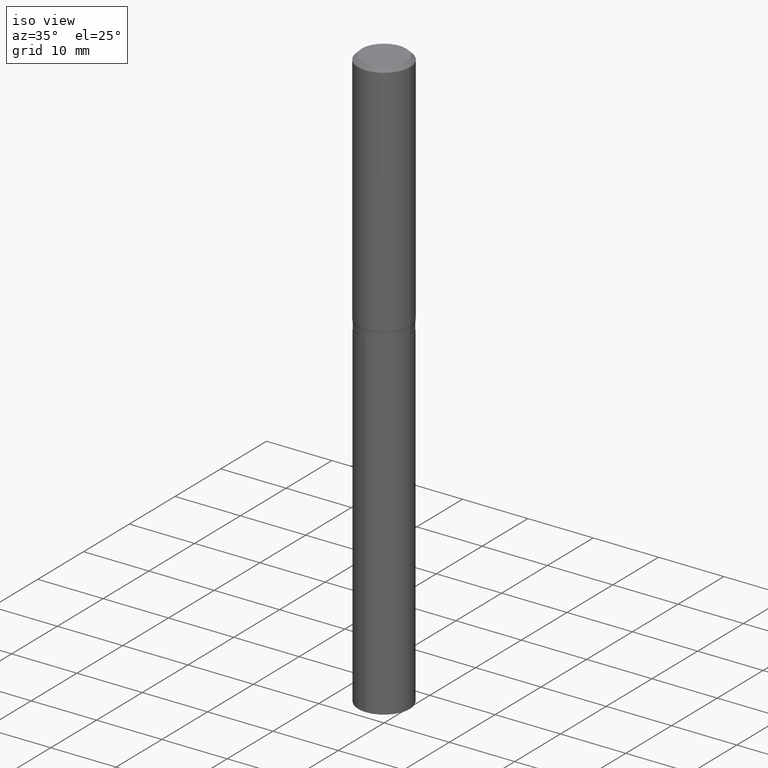
[diagram: clean part render]
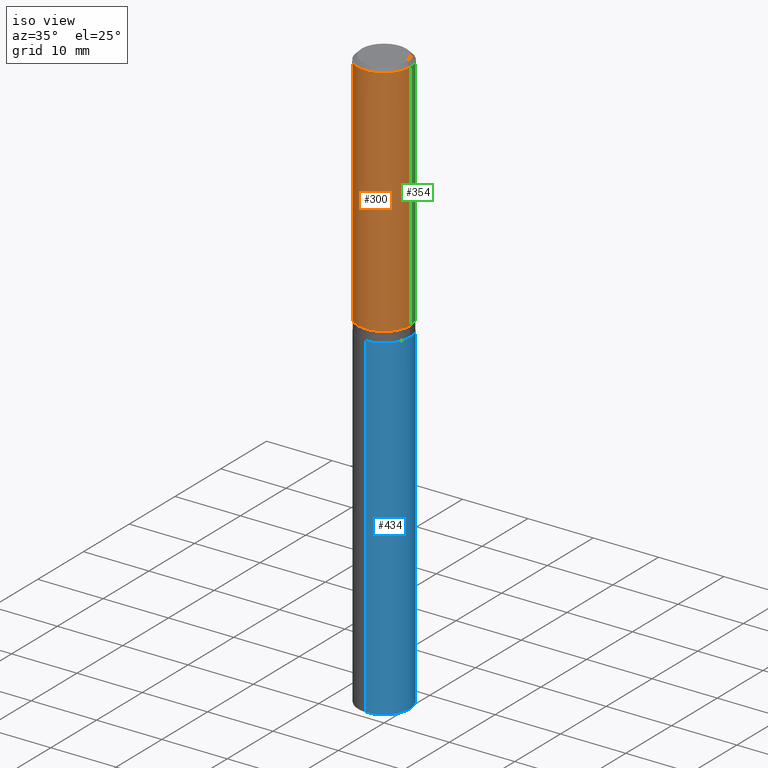
[diagram: same view with three faces highlighted in distinct colors, each labeled with its STEP entity id]
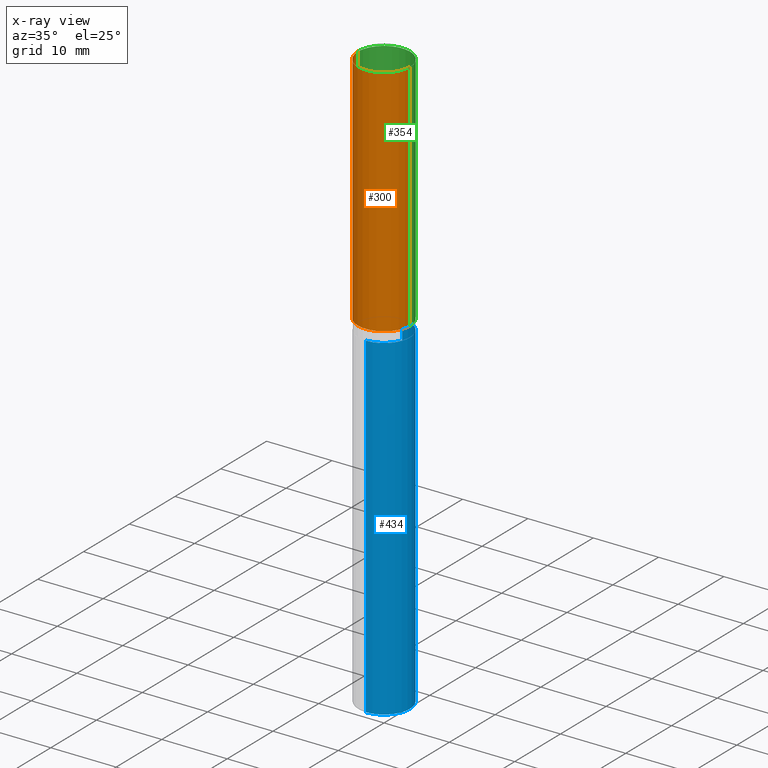
[diagram: x-ray of the same camera — body ghosted, the three highlighted faces saturated]
A machine part, iso view with three faces highlighted in distinct colors.
The next image is the same camera in x-ray (body ghosted, the three faces saturated) — at least one of them is partly hidden behind the body in this view.
Their STEP definitions:

[orange] entity #300 — the highlighted cylindrical surface (edge-blend (fillet) strip) has radius 4.0005 mm, axis along (-0, 0, 1).
#25 = FACE_OUTER_BOUND ( 'NONE', #258, .T. ) ;
#45 = ORIENTED_EDGE ( 'NONE', *, *, #226, .T. ) ;
#69 = CIRCLE ( 'NONE', #176, 0.1575000000000000011 ) ;
#70 = CARTESIAN_POINT ( 'NONE',  ( -0.1575000000000000844, -3.879823846748023569E-15, -1.431750071225214915 ) ) ;
#105 = VERTEX_POINT ( 'NONE', #138 ) ;
#114 = ORIENTED_EDGE ( 'NONE', *, *, #116, .F. ) ;
#116 = EDGE_CURVE ( 'NONE', #445, #378, #219, .T. ) ;
#122 = VECTOR ( 'NONE', #277, 39.37007874015748143 ) ;
#138 = CARTESIAN_POINT ( 'NONE',  ( 0.1575000000000000011, -1.182302868365756679E-15, -0.02362500000000014588 ) ) ;
#143 = DIRECTION ( 'NONE',  ( -2.445468806185136597E-29, 3.491481338843145583E-15, 1.000000000000000000 ) ) ;
#149 = LINE ( 'NONE', #400, #122 ) ;
#157 = EDGE_CURVE ( 'NONE', #378, #105, #69, .T. ) ;
#163 = CARTESIAN_POINT ( 'NONE',  ( 3.501300137434611015E-29, -4.998928655570182750E-15, -1.431750071225214915 ) ) ;
#167 = VERTEX_POINT ( 'NONE', #380 ) ;
#176 = AXIS2_PLACEMENT_3D ( 'NONE', #305, #231, #190 ) ;
#190 = DIRECTION ( 'NONE',  ( 1.000000000000000000, -6.982962677686265922E-15, 0.000000000000000000 ) ) ;
#219 = LINE ( 'NONE', #260, #394 ) ;
#226 = EDGE_CURVE ( 'NONE', #167, #105, #149, .T. ) ;
#231 = DIRECTION ( 'NONE',  ( -2.445468806185136597E-29, 3.491481338843145583E-15, 1.000000000000000000 ) ) ;
#258 = EDGE_LOOP ( 'NONE', ( #114, #297, #45, #366 ) ) ;
#259 = EDGE_CURVE ( 'NONE', #445, #167, #324, .T. ) ;
#260 = CARTESIAN_POINT ( 'NONE',  ( -0.1575000000000000566, 1.119104808822158195E-15, -7.747322767151479787E-30 ) ) ;
#277 = DIRECTION ( 'NONE',  ( -2.445468806185136877E-29, 3.491481338843145188E-15, 1.000000000000000000 ) ) ;
#297 = ORIENTED_EDGE ( 'NONE', *, *, #259, .T. ) ;
#300 = ADVANCED_FACE ( 'NONE', ( #25 ), #396, .T. ) ;
#305 = CARTESIAN_POINT ( 'NONE',  ( 5.777420054612421104E-31, -8.248624663016984002E-17, -0.02362500000000014588 ) ) ;
#311 = DIRECTION ( 'NONE',  ( -2.445468806185136597E-29, 3.491481338843145583E-15, 1.000000000000000000 ) ) ;
#315 = CARTESIAN_POINT ( 'NONE',  ( -0.1575000000000000011, -1.421602642278017878E-15, -0.02362500000000014588 ) ) ;
#324 = CIRCLE ( 'NONE', #382, 0.1575000000000001399 ) ;
#366 = ORIENTED_EDGE ( 'NONE', *, *, #157, .F. ) ;
#378 = VERTEX_POINT ( 'NONE', #315 ) ;
#380 = CARTESIAN_POINT ( 'NONE',  ( 0.1575000000000000844, -6.098745277305771019E-15, -1.431750071225214915 ) ) ;
#382 = AXIS2_PLACEMENT_3D ( 'NONE', #163, #311, #466 ) ;
#383 = DIRECTION ( 'NONE',  ( -2.445468806185136877E-29, 3.491481338843145188E-15, 1.000000000000000000 ) ) ;
#384 = DIRECTION ( 'NONE',  ( 1.000000000000000000, -6.982962677686267499E-15, 4.876176775795936353E-29 ) ) ;
#394 = VECTOR ( 'NONE', #383, 39.37007874015748143 ) ;
#396 = CYLINDRICAL_SURFACE ( 'NONE', #456, 0.1575000000000000566 ) ;
#400 = CARTESIAN_POINT ( 'NONE',  ( 0.1575000000000000566, -1.099816621735587480E-15, 7.679978421878602237E-30 ) ) ;
#445 = VERTEX_POINT ( 'NONE', #70 ) ;
#456 = AXIS2_PLACEMENT_3D ( 'NONE', #486, #143, #384 ) ;
#466 = DIRECTION ( 'NONE',  ( 1.000000000000000000, -6.982962677686268288E-15, 0.000000000000000000 ) ) ;
#486 = CARTESIAN_POINT ( 'NONE',  ( 0.000000000000000000, 0.000000000000000000, 0.000000000000000000 ) ) ;

[blue] entity #434 — the highlighted cylindrical surface (edge-blend (fillet) strip) has radius 3.9497 mm, axis along (-0, 0, 1).
#4 = AXIS2_PLACEMENT_3D ( 'NONE', #372, #35, #148 ) ;
#8 = VERTEX_POINT ( 'NONE', #433 ) ;
#23 = CYLINDRICAL_SURFACE ( 'NONE', #4, 0.1554999999999999993 ) ;
#28 = ORIENTED_EDGE ( 'NONE', *, *, #283, .T. ) ;
#35 = DIRECTION ( 'NONE',  ( -2.445445601509706497E-29, 3.491514569259089389E-15, 1.000000000000000000 ) ) ;
#59 = CARTESIAN_POINT ( 'NONE',  ( -1.085850696380128480E-15, -0.1555000000000123228, -3.520173921882633117 ) ) ;
#80 = CIRCLE ( 'NONE', #127, 0.1554999999999999993 ) ;
#81 = ORIENTED_EDGE ( 'NONE', *, *, #291, .F. ) ;
#86 = EDGE_CURVE ( 'NONE', #194, #184, #294, .T. ) ;
#101 = CARTESIAN_POINT ( 'NONE',  ( -1.085850696380177586E-15, -0.1555000000000052174, -1.496399999999999730 ) ) ;
#125 = VECTOR ( 'NONE', #276, 39.37007874015748143 ) ;
#127 = AXIS2_PLACEMENT_3D ( 'NONE', #204, #363, #361 ) ;
#137 = EDGE_LOOP ( 'NONE', ( #274, #28, #81, #387 ) ) ;
#148 = DIRECTION ( 'NONE',  ( -6.982962677686265133E-15, -1.000000000000000000, 3.513630860018345064E-15 ) ) ;
#161 = VECTOR ( 'NONE', #467, 39.37007874015748143 ) ;
#184 = VERTEX_POINT ( 'NONE', #197 ) ;
#186 = DIRECTION ( 'NONE',  ( -6.982962677686265133E-15, -1.000000000000000000, 3.513630860018345064E-15 ) ) ;
#192 = CARTESIAN_POINT ( 'NONE',  ( 1.104893954106992072E-15, 0.1554999999999947535, -1.496400000000000841 ) ) ;
#194 = VERTEX_POINT ( 'NONE', #59 ) ;
#197 = CARTESIAN_POINT ( 'NONE',  ( -1.085850696380177586E-15, -0.1555000000000052174, -1.496399999999999730 ) ) ;
#204 = CARTESIAN_POINT ( 'NONE',  ( 3.659399521575438742E-29, -5.224652675444883351E-15, -1.496400000000000174 ) ) ;
#212 = CARTESIAN_POINT ( 'NONE',  ( 1.104893954107042165E-15, 0.1554999999999947535, -1.496400000000000841 ) ) ;
#265 = CIRCLE ( 'NONE', #431, 0.1554999999999999993 ) ;
#274 = ORIENTED_EDGE ( 'NONE', *, *, #469, .T. ) ;
#276 = DIRECTION ( 'NONE',  ( -2.445445601509706497E-29, 3.491514569259089389E-15, 1.000000000000000000 ) ) ;
#283 = EDGE_CURVE ( 'NONE', #8, #452, #436, .T. ) ;
#291 = EDGE_CURVE ( 'NONE', #184, #452, #80, .T. ) ;
#294 = LINE ( 'NONE', #101, #125 ) ;
#328 = CARTESIAN_POINT ( 'NONE',  ( 8.608428557293372452E-29, -1.229068880858470422E-14, -3.520173921882633561 ) ) ;
#359 = FACE_OUTER_BOUND ( 'NONE', #137, .T. ) ;
#361 = DIRECTION ( 'NONE',  ( -6.982962677686265133E-15, -1.000000000000000000, 3.513630860018345064E-15 ) ) ;
#363 = DIRECTION ( 'NONE',  ( -2.445445601509706497E-29, 3.491514569259089389E-15, 1.000000000000000000 ) ) ;
#372 = CARTESIAN_POINT ( 'NONE',  ( 3.659399521575438742E-29, -5.224652675444883351E-15, -1.496400000000000174 ) ) ;
#387 = ORIENTED_EDGE ( 'NONE', *, *, #86, .F. ) ;
#431 = AXIS2_PLACEMENT_3D ( 'NONE', #328, #483, #186 ) ;
#433 = CARTESIAN_POINT ( 'NONE',  ( 1.104893954107041770E-15, 0.1554999999999877591, -3.520173921882634005 ) ) ;
#434 = ADVANCED_FACE ( 'NONE', ( #359 ), #23, .T. ) ;
#436 = LINE ( 'NONE', #192, #161 ) ;
#452 = VERTEX_POINT ( 'NONE', #212 ) ;
#467 = DIRECTION ( 'NONE',  ( -2.445445601509706497E-29, 3.491514569259089389E-15, 1.000000000000000000 ) ) ;
#469 = EDGE_CURVE ( 'NONE', #194, #8, #265, .T. ) ;
#483 = DIRECTION ( 'NONE',  ( -2.445445601509706497E-29, 3.491514569259089389E-15, 1.000000000000000000 ) ) ;

[green] entity #354 — the highlighted cylindrical surface (edge-blend (fillet) strip) has radius 4.0005 mm, axis along (-0, 0, 1).
#12 = DIRECTION ( 'NONE',  ( -2.445468806185136597E-29, 3.491481338843145583E-15, 1.000000000000000000 ) ) ;
#27 = DIRECTION ( 'NONE',  ( 1.000000000000000000, -6.982962677686268288E-15, 0.000000000000000000 ) ) ;
#29 = EDGE_CURVE ( 'NONE', #167, #445, #365, .T. ) ;
#70 = CARTESIAN_POINT ( 'NONE',  ( -0.1575000000000000844, -3.879823846748023569E-15, -1.431750071225214915 ) ) ;
#85 = CARTESIAN_POINT ( 'NONE',  ( 0.000000000000000000, 0.000000000000000000, 0.000000000000000000 ) ) ;
#90 = AXIS2_PLACEMENT_3D ( 'NONE', #85, #351, #132 ) ;
#105 = VERTEX_POINT ( 'NONE', #138 ) ;
#116 = EDGE_CURVE ( 'NONE', #445, #378, #219, .T. ) ;
#122 = VECTOR ( 'NONE', #277, 39.37007874015748143 ) ;
#132 = DIRECTION ( 'NONE',  ( 1.000000000000000000, -6.982962677686267499E-15, 4.876176775795936353E-29 ) ) ;
#138 = CARTESIAN_POINT ( 'NONE',  ( 0.1575000000000000011, -1.182302868365756679E-15, -0.02362500000000014588 ) ) ;
#140 = DIRECTION ( 'NONE',  ( -2.445468806185136597E-29, 3.491481338843145583E-15, 1.000000000000000000 ) ) ;
#149 = LINE ( 'NONE', #400, #122 ) ;
#160 = DIRECTION ( 'NONE',  ( 1.000000000000000000, -6.982962677686265922E-15, 0.000000000000000000 ) ) ;
#167 = VERTEX_POINT ( 'NONE', #380 ) ;
#182 = EDGE_LOOP ( 'NONE', ( #282, #327, #370, #214 ) ) ;
#210 = CIRCLE ( 'NONE', #465, 0.1575000000000000011 ) ;
#214 = ORIENTED_EDGE ( 'NONE', *, *, #226, .F. ) ;
#219 = LINE ( 'NONE', #260, #394 ) ;
#226 = EDGE_CURVE ( 'NONE', #167, #105, #149, .T. ) ;
#239 = EDGE_CURVE ( 'NONE', #105, #378, #210, .T. ) ;
#260 = CARTESIAN_POINT ( 'NONE',  ( -0.1575000000000000566, 1.119104808822158195E-15, -7.747322767151479787E-30 ) ) ;
#277 = DIRECTION ( 'NONE',  ( -2.445468806185136877E-29, 3.491481338843145188E-15, 1.000000000000000000 ) ) ;
#282 = ORIENTED_EDGE ( 'NONE', *, *, #29, .T. ) ;
#306 = CYLINDRICAL_SURFACE ( 'NONE', #90, 0.1575000000000000566 ) ;
#315 = CARTESIAN_POINT ( 'NONE',  ( -0.1575000000000000011, -1.421602642278017878E-15, -0.02362500000000014588 ) ) ;
#319 = CARTESIAN_POINT ( 'NONE',  ( 3.501300137434611015E-29, -4.998928655570182750E-15, -1.431750071225214915 ) ) ;
#327 = ORIENTED_EDGE ( 'NONE', *, *, #116, .T. ) ;
#349 = FACE_OUTER_BOUND ( 'NONE', #182, .T. ) ;
#351 = DIRECTION ( 'NONE',  ( -2.445468806185136597E-29, 3.491481338843145583E-15, 1.000000000000000000 ) ) ;
#354 = ADVANCED_FACE ( 'NONE', ( #349 ), #306, .T. ) ;
#365 = CIRCLE ( 'NONE', #435, 0.1575000000000001399 ) ;
#370 = ORIENTED_EDGE ( 'NONE', *, *, #239, .F. ) ;
#376 = CARTESIAN_POINT ( 'NONE',  ( 5.777420054612421104E-31, -8.248624663016984002E-17, -0.02362500000000014588 ) ) ;
#378 = VERTEX_POINT ( 'NONE', #315 ) ;
#380 = CARTESIAN_POINT ( 'NONE',  ( 0.1575000000000000844, -6.098745277305771019E-15, -1.431750071225214915 ) ) ;
#383 = DIRECTION ( 'NONE',  ( -2.445468806185136877E-29, 3.491481338843145188E-15, 1.000000000000000000 ) ) ;
#394 = VECTOR ( 'NONE', #383, 39.37007874015748143 ) ;
#400 = CARTESIAN_POINT ( 'NONE',  ( 0.1575000000000000566, -1.099816621735587480E-15, 7.679978421878602237E-30 ) ) ;
#435 = AXIS2_PLACEMENT_3D ( 'NONE', #319, #140, #27 ) ;
#445 = VERTEX_POINT ( 'NONE', #70 ) ;
#465 = AXIS2_PLACEMENT_3D ( 'NONE', #376, #12, #160 ) ;